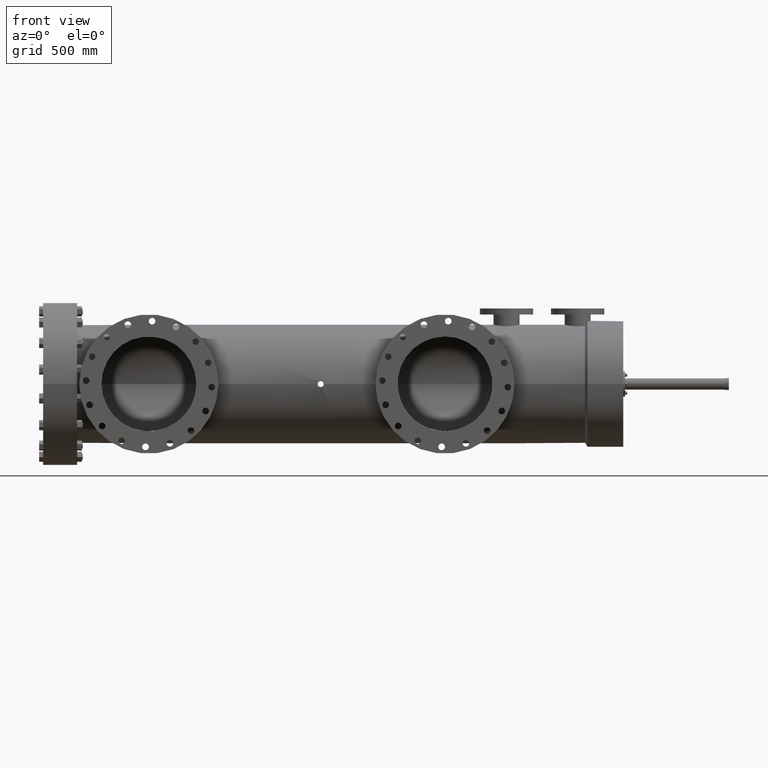
[diagram: clean part render]
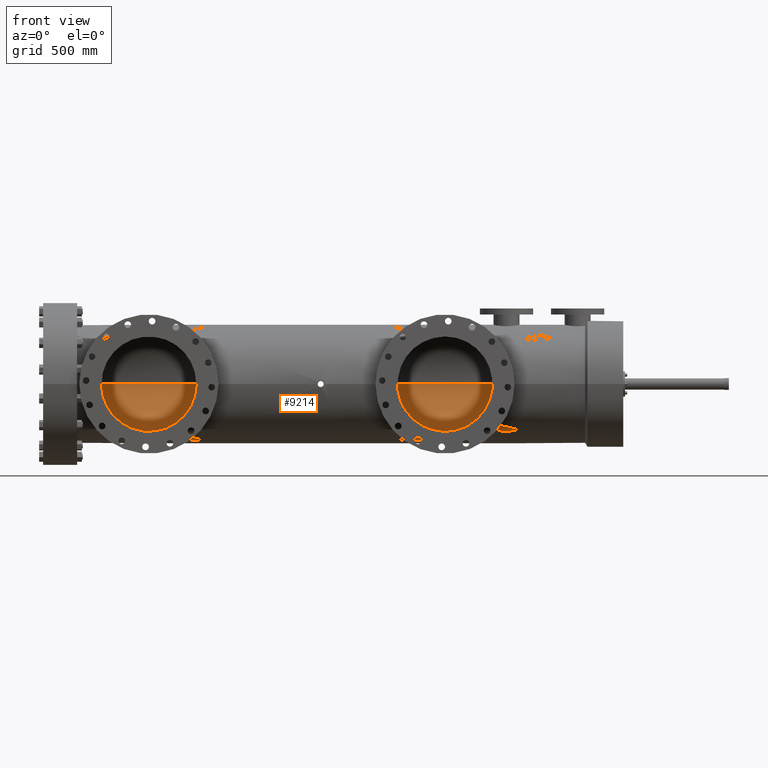
[diagram: same view with one face highlighted and labeled with its STEP entity id]
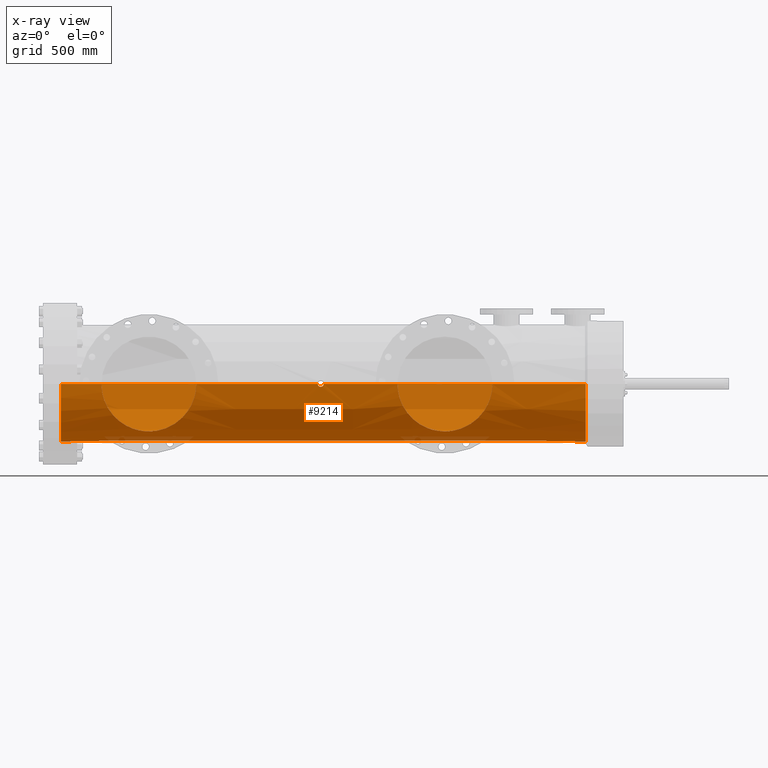
[diagram: x-ray of the same camera — body ghosted, the highlighted face saturated]
A machine part, front view. The second image highlights one B-rep face of the part: STEP entity #9214.
The next image is the same camera in x-ray: the body ghosted, the highlighted face saturated — about 2% of this face is hidden behind the body in this view.
In plain terms, the highlighted conical surface has half-angle 0.002 deg.
Its self-contained STEP definition (entity closure, byte-faithful):
#279 = CARTESIAN_POINT ( 'NONE',  ( 24.39232882805036340, -9.421316541331314909, -2.699939142225124655 ) ) ;
#745 = CARTESIAN_POINT ( 'NONE',  ( 17.96031528633255547, -5.758805532272223360, -7.928868284412169842 ) ) ;
#782 = LINE ( 'NONE', #18711, #11001 ) ;
#797 = CARTESIAN_POINT ( 'NONE',  ( 62.00422786392504548, -7.458280375652960537, -6.362209019289776002 ) ) ;
#931 = CARTESIAN_POINT ( 'NONE',  ( 90.16148958776295785, 9.793663795690340734, -0.4127311979922674845 ) ) ;
#1014 = CARTESIAN_POINT ( 'NONE',  ( 13.42651209204391805, -6.619268866873399659, -7.225770235389515683 ) ) ;
#1034 = VERTEX_POINT ( 'NONE', #19450 ) ;
#1072 = CARTESIAN_POINT ( 'NONE',  ( 59.32614645215986116, -9.424697979949854698, -2.703072667367027559 ) ) ;
#1106 = CARTESIAN_POINT ( 'NONE',  ( 16.29372268271364987, -5.681083243935537652, -7.984663375792330875 ) ) ;
#1114 = CARTESIAN_POINT ( 'NONE',  ( 89.47717472525297921, 9.753733290483582508, -0.9744122372484894656 ) ) ;
#1191 = VECTOR ( 'NONE', #18191, 39.37007874015748143 ) ;
#1205 = CARTESIAN_POINT ( 'NONE',  ( 8.911018579896685665, -9.757837310311769485, -0.9003962378500424135 ) ) ;
#1212 = CARTESIAN_POINT ( 'NONE',  ( 45.59458425846966634, -9.792080280577094342, -0.4067200306687098199 ) ) ;
#1277 = CARTESIAN_POINT ( 'NONE',  ( 71.21178476385379952, -7.141255126980369461, -6.714290257349508018 ) ) ;
#1368 = CARTESIAN_POINT ( 'NONE',  ( 74.80986234949774882, -9.760412961162982626, -0.9013305921862835302 ) ) ;
#1456 = CARTESIAN_POINT ( 'NONE',  ( 74.08751219958556078, -9.181405537244874182, -3.441101267069935687 ) ) ;
#1468 = CARTESIAN_POINT ( 'NONE',  ( 88.64123798535104015, 9.770085816194228556, -0.7934810798631412032 ) ) ;
#1490 = CARTESIAN_POINT ( 'NONE',  ( 45.38586870589011824, -9.800510712146875747, -0.03265973047825470460 ) ) ;
#1514 = CARTESIAN_POINT ( 'NONE',  ( 46.33464961407631932, -9.798066265572089151, -0.2210529081878922497 ) ) ;
#1518 = CARTESIAN_POINT ( 'NONE',  ( 90.62478940921818094, 6.909226111716762063E-15, 0.0000000000000000000 ) ) ;
#1560 = CARTESIAN_POINT ( 'NONE',  ( 88.99130990227989457, 9.754503045997573452, -0.9665043493307531319 ) ) ;
#1577 = CARTESIAN_POINT ( 'NONE',  ( 11.61820156432649398, -7.713655643213581214, -6.044320802968801587 ) ) ;
#1643 = CARTESIAN_POINT ( 'NONE',  ( 74.56144823080687445, -9.559042686692970747, -2.183673926086886929 ) ) ;
#1649 = CARTESIAN_POINT ( 'NONE',  ( 46.19081251668125532, 9.792492163120387616, -0.3975798879856175527 ) ) ;
#1672 = CARTESIAN_POINT ( 'NONE',  ( 45.38586870589011824, 9.800510712146882852, 2.136757097606520133E-25 ) ) ;
#1855 = CARTESIAN_POINT ( 'NONE',  ( 45.82077671231898819, 9.787928789838094445, -0.4968339186462052970 ) ) ;
#1883 = EDGE_CURVE ( 'NONE', #9734, #21793, #6705, .T. ) ;
#1924 = CARTESIAN_POINT ( 'NONE',  ( 46.21609898264216554, 9.793322853503520165, -0.3768781932275288016 ) ) ;
#1953 = CARTESIAN_POINT ( 'NONE',  ( 45.85322482763306340, 9.787766774577660200, -0.5000000000000018874 ) ) ;
#1990 = VECTOR ( 'NONE', #6569, 39.37007874015748143 ) ;
#2043 = CARTESIAN_POINT ( 'NONE',  ( 45.62174090096357304, 9.791311063596229047, -0.4248617849489732534 ) ) ;
#2441 = CARTESIAN_POINT ( 'NONE',  ( 24.29609618872611776, -9.344590134596595377, -2.952339985708383630 ) ) ;
#2775 = CARTESIAN_POINT ( 'NONE',  ( 65.75658788821888834, -5.767749409279006478, -7.924672525341859952 ) ) ;
#2874 = CARTESIAN_POINT ( 'NONE',  ( 64.95425761335594927, -5.969505304088938757, -7.774245386953356096 ) ) ;
#2910 = CARTESIAN_POINT ( 'NONE',  ( 13.65783570847724704, -6.502258961163677853, -7.331240993565498520 ) ) ;
#2972 = CARTESIAN_POINT ( 'NONE',  ( 60.43172228706932003, -8.566333140201180640, -4.768134066438138419 ) ) ;
#3005 = CARTESIAN_POINT ( 'NONE',  ( 19.14013618332662148, -6.101032381243605585, -7.668612179979144017 ) ) ;
#3072 = CARTESIAN_POINT ( 'NONE',  ( 65.48395722662630192, -5.826058895997581644, -7.881890053033109744 ) ) ;
#3108 = CARTESIAN_POINT ( 'NONE',  ( 18.94846737558325600, -6.032008424312683914, -7.723005520867955553 ) ) ;
#3115 = CARTESIAN_POINT ( 'NONE',  ( 90.21167408006206756, 9.798470285333340968, -0.2748739252585934989 ) ) ;
#3195 = CARTESIAN_POINT ( 'NONE',  ( 66.86049224117985545, -5.662767000513762916, -7.999999999999997335 ) ) ;
#3201 = CARTESIAN_POINT ( 'NONE',  ( 21.25761619273588110, -7.166871633091233207, -6.683499774763438595 ) ) ;
#3247 = CARTESIAN_POINT ( 'NONE',  ( 4.760007912436881483, 9.798877748375659280, 0.0000000000000000000 ) ) ;
#3288 = CARTESIAN_POINT ( 'NONE',  ( 15.47330794972398849, -5.825208343646455234, -7.880020305949234860 ) ) ;
#3294 = CARTESIAN_POINT ( 'NONE',  ( 2.010000000000142339, 1.897867698812970558E-16, 0.0000000000000000000 ) ) ;
#3390 = CARTESIAN_POINT ( 'NONE',  ( 45.66414067474029537, -9.790223629947410799, -0.4493420235991862355 ) ) ;
#3445 = AXIS2_PLACEMENT_3D ( 'NONE', #17784, #22191, #26543 ) ;
#3449 = CARTESIAN_POINT ( 'NONE',  ( 74.86049224117984124, -9.801695449933674809, -0.2765965265660830230 ) ) ;
#3461 = CARTESIAN_POINT ( 'NONE',  ( 88.28843366247254210, 9.798393083656971925, -0.2748697836163772057 ) ) ;
#3467 = CARTESIAN_POINT ( 'NONE',  ( 90.62478940921818094, -9.802329098689698483, 1.200439095489930548E-15 ) ) ;
#3481 = CARTESIAN_POINT ( 'NONE',  ( 89.31615008927659005, 9.751134525649161944, -1.000000000000006883 ) ) ;
#3508 = CARTESIAN_POINT ( 'NONE',  ( 46.21649945858020203, -9.793336994836321807, -0.3764961099062537064 ) ) ;
#3540 = CARTESIAN_POINT ( 'NONE',  ( 69.21210655566294179, -6.131523709541304434, -7.646841670670427860 ) ) ;
#3569 = CARTESIAN_POINT ( 'NONE',  ( 8.874860107336386861, -9.787302285417240455, -0.5542539562675082854 ) ) ;
#3579 = CARTESIAN_POINT ( 'NONE',  ( 45.39862888176386235, -9.799867995198365378, -0.1134333349451302209 ) ) ;
#3659 = CARTESIAN_POINT ( 'NONE',  ( 88.89719760280554794, 9.757452920757907933, -0.9362510111404485080 ) ) ;
#3746 = CARTESIAN_POINT ( 'NONE',  ( 73.39736110929270296, -8.648824532111079932, -4.612316344326865547 ) ) ;
#3792 = ORIENTED_EDGE ( 'NONE', *, *, #13354, .T. ) ;
#3838 = CARTESIAN_POINT ( 'NONE',  ( 70.89302295319399150, -6.951546184137329831, -6.910444069353355090 ) ) ;
#3839 = VECTOR ( 'NONE', #22656, 39.37007874015748143 ) ;
#3845 = CARTESIAN_POINT ( 'NONE',  ( 46.37940889615897788, 9.800222687526815690, -0.08176301120257939425 ) ) ;
#3849 = CARTESIAN_POINT ( 'NONE',  ( 89.11895157724963212, 9.751798232096179575, -0.9935108352566323076 ) ) ;
#3875 = CARTESIAN_POINT ( 'NONE',  ( 45.88586870589012534, 9.787768088415152334, -0.5000000000000018874 ) ) ;
#4063 = CARTESIAN_POINT ( 'NONE',  ( 45.38586870589011824, 9.800510712146882852, 2.136757097606520133E-25 ) ) ;
#4132 = CARTESIAN_POINT ( 'NONE',  ( 46.31899747106437104, 9.797361179515666763, -0.2503376971763494052 ) ) ;
#4320 = VERTEX_POINT ( 'NONE', #3467 ) ;
#4378 = EDGE_CURVE ( 'NONE', #20745, #16802, #28085, .T. ) ;
#4475 = CARTESIAN_POINT ( 'NONE',  ( 4.760007912436882371, -9.798877748375659280, 1.200016426978447546E-15 ) ) ;
#4522 = EDGE_CURVE ( 'NONE', #27262, #21743, #8027, .T. ) ;
#4645 = CARTESIAN_POINT ( 'NONE',  ( 23.71487717820624752, -8.888708064794872854, -4.133411517548927883 ) ) ;
#4832 = CARTESIAN_POINT ( 'NONE',  ( 24.80976274328171272, -9.758313552580895944, -0.9022141227195618063 ) ) ;
#4924 = CARTESIAN_POINT ( 'NONE',  ( 24.77342325420806901, -9.728731090712619434, -1.179122369567905393 ) ) ;
#4948 = VECTOR ( 'NONE', #25262, 39.37007874015748143 ) ;
#4984 = CARTESIAN_POINT ( 'NONE',  ( 61.48354654243040329, -7.808527382762680880, -5.923876869915077670 ) ) ;
#5028 = CARTESIAN_POINT ( 'NONE',  ( 24.86049224117985545, -9.799685690953408468, 1.200140814752101510E-15 ) ) ;
#5084 = CARTESIAN_POINT ( 'NONE',  ( 59.58277854904691395, -9.220955053683873359, -3.322546469725014884 ) ) ;
#5128 = CARTESIAN_POINT ( 'NONE',  ( 12.81675735257982396, -6.952932841763599825, -6.907262569712975697 ) ) ;
#5184 = CARTESIAN_POINT ( 'NONE',  ( 63.26323500263490018, -6.707829939862482327, -7.146725287576750851 ) ) ;
#5223 = CARTESIAN_POINT ( 'NONE',  ( 20.88671935428436299, -6.945053781329269427, -6.914120472601025469 ) ) ;
#5314 = CARTESIAN_POINT ( 'NONE',  ( 21.10000246273018476, -7.071248979005416935, -6.784574465424803691 ) ) ;
#5325 = CARTESIAN_POINT ( 'NONE',  ( 89.91015919429582937, 9.773442840322770664, -0.7518961167791015088 ) ) ;
#5377 = CARTESIAN_POINT ( 'NONE',  ( 63.66549028453822956, -6.501521910325042342, -7.334580682442592980 ) ) ;
#5416 = CARTESIAN_POINT ( 'NONE',  ( 23.24352791302816712, -8.530828957047708272, -4.822957073630965930 ) ) ;
#5514 = CARTESIAN_POINT ( 'NONE',  ( 14.68978662525803536, -6.056876519260968372, -7.704269481456393898 ) ) ;
#5519 = CARTESIAN_POINT ( 'NONE',  ( 45.48845773236820378, -9.795799699318690656, -0.3052064428722124356 ) ) ;
#5612 = CARTESIAN_POINT ( 'NONE',  ( 45.72508717758885410, -9.789069430897358259, -0.4737298652523404541 ) ) ;
#5631 = CARTESIAN_POINT ( 'NONE',  ( 45.88586870589012534, -9.787768088415145229, -0.5000000000000018874 ) ) ;
#5657 = EDGE_CURVE ( 'NONE', #25934, #27262, #14959, .T. ) ;
#5659 = CARTESIAN_POINT ( 'NONE',  ( 58.86049224117987677, -9.801052327059995406, -0.2774397619406080984 ) ) ;
#5668 = CARTESIAN_POINT ( 'NONE',  ( 74.80165867348580377, -9.753731793377625081, -0.9709468608162067360 ) ) ;
#5695 = CARTESIAN_POINT ( 'NONE',  ( 10.42921937449577818, -8.565914672601071089, -4.764746784469938490 ) ) ;
#5704 = CARTESIAN_POINT ( 'NONE',  ( 89.69381441004098576, 9.761054318362246462, -0.8985420849505451057 ) ) ;
#5884 = CARTESIAN_POINT ( 'NONE',  ( 9.553994211350696375, -9.241559813644199650, -3.258767869497628755 ) ) ;
#5890 = CARTESIAN_POINT ( 'NONE',  ( 45.42318593740324673, -9.798673371922470565, -0.1916234433861865871 ) ) ;
#5949 = CARTESIAN_POINT ( 'NONE',  ( 68.23954406339611012, -5.822881908861550215, -7.884825904572606348 ) ) ;
#6017 = CARTESIAN_POINT ( 'NONE',  ( 24.86049224117985545, -9.799685690953408468, 1.200140814752101510E-15 ) ) ;
#6046 = CARTESIAN_POINT ( 'NONE',  ( 68.95784692037791785, -6.038525970598914938, -7.720462985834719127 ) ) ;
#6059 = CARTESIAN_POINT ( 'NONE',  ( 88.27603790705987308, 9.799617210756888852, -0.2270751238764095181 ) ) ;
#6085 = CARTESIAN_POINT ( 'NONE',  ( 45.41772306735251163, 9.798936492964731571, -0.1763743142706030442 ) ) ;
#6181 = CARTESIAN_POINT ( 'NONE',  ( 45.75632630621760910, 9.788607549349485737, -0.4832049414673220689 ) ) ;
#6349 = CARTESIAN_POINT ( 'NONE',  ( 58.86049224117985545, -9.801052327059991853, 1.199605744919106021E-15 ) ) ;
#6440 = ORIENTED_EDGE ( 'NONE', *, *, #27313, .F. ) ;
#6456 = CARTESIAN_POINT ( 'NONE',  ( 45.58067721873132427, 9.792474493902229682, -0.3974195399665272910 ) ) ;
#6469 = ORIENTED_EDGE ( 'NONE', *, *, #5657, .F. ) ;
#6569 = DIRECTION ( 'NONE',  ( 0.9999999991921737497, -4.019517957289223841E-05, 4.922489800518841481E-21 ) ) ;
#6705 = B_SPLINE_CURVE_WITH_KNOTS ( 'NONE', 3,
 ( #7771, #9949, #23649, #14981, #3845, #19254, #12713, #21361, #12625, #4132, #14709, #8522, #10408, #1924, #1649, #23364, #17152, #16965, #10231, #19346, #21459, #25647, #12439, #27626, #27818, #16872 ),
 .UNSPECIFIED., .F., .F.,
 ( 4, 2, 2, 2, 2, 2, 2, 2, 2, 2, 2, 2, 4 ),
 ( 0.01134461212176070440, 0.01258534483995168811, 0.01382607755814267182, 0.01630754299452450914, 0.01754827571271529857, 0.01878900843090609146, 0.02127047386728767031, 0.02375193930366925263, 0.02499267202186031961, 0.02623340474005139006, 0.02871487017643290646, 0.02995560289462399078, 0.03119633561281507511 ),
 .UNSPECIFIED. ) ;
#7028 = CARTESIAN_POINT ( 'NONE',  ( 24.80154336224820000, -9.751618239325358317, -0.9718938821171205777 ) ) ;
#7146 = VERTEX_POINT ( 'NONE', #18679 ) ;
#7185 = CARTESIAN_POINT ( 'NONE',  ( 60.00709521752729358, -8.889555979156067878, -4.135000633789836400 ) ) ;
#7221 = CARTESIAN_POINT ( 'NONE',  ( 24.71593840836806422, -9.682018595915607762, -1.520124255912896016 ) ) ;
#7275 = CARTESIAN_POINT ( 'NONE',  ( 59.55519499266011252, -9.242741666775074805, -3.261460157678774952 ) ) ;
#7310 = CARTESIAN_POINT ( 'NONE',  ( 18.62436739785780659, -5.926564081008024232, -7.804284203383559770 ) ) ;
#7343 = LINE ( 'NONE', #20419, #1191 ) ;
#7359 = CARTESIAN_POINT ( 'NONE',  ( 60.58472940562327125, -8.451931128115383274, -4.967647678878784667 ) ) ;
#7397 = CARTESIAN_POINT ( 'NONE',  ( 17.12724512070441207, -5.663862519892436609, -7.996784432731679715 ) ) ;
#7405 = DIRECTION ( 'NONE',  ( 8.363852109406349511E-17, -1.000000000000000000, 0.0000000000000000000 ) ) ;
#7494 = CARTESIAN_POINT ( 'NONE',  ( 15.88228472054454166, -5.741537577148529969, -7.941166745878928346 ) ) ;
#7504 = CARTESIAN_POINT ( 'NONE',  ( 90.21605569206832342, 9.798901775080029353, -0.2590615066086743301 ) ) ;
#7554 = CARTESIAN_POINT ( 'NONE',  ( 59.09082125688457410, -9.613921098938826404, -1.925620962628654897 ) ) ;
#7591 = CARTESIAN_POINT ( 'NONE',  ( 22.09706312640200565, -7.709278228267019806, -6.053017827501999015 ) ) ;
#7685 = CARTESIAN_POINT ( 'NONE',  ( 11.71230094202589456, -7.649984423141800605, -6.124651258377797447 ) ) ;
#7717 = CARTESIAN_POINT ( 'NONE',  ( 46.10774619494874571, -9.790244575792623749, -0.4492757689922434738 ) ) ;
#7771 = CARTESIAN_POINT ( 'NONE',  ( 46.38586870589013245, 9.800550907326487149, 8.868535795577574159E-24 ) ) ;
#7819 = CARTESIAN_POINT ( 'NONE',  ( 46.26265322447456896, -9.795005652698062448, -0.3303020465483563761 ) ) ;
#7848 = CARTESIAN_POINT ( 'NONE',  ( 58.98011408740912742, -9.703654981949972225, -1.385327404214915292 ) ) ;
#7858 = CARTESIAN_POINT ( 'NONE',  ( 73.13003217264582645, -8.448451828910865657, -4.970823295176928447 ) ) ;
#7868 = CARTESIAN_POINT ( 'NONE',  ( 88.66762846786897967, 9.768477884648415710, -0.8130496251177457001 ) ) ;
#7892 = CARTESIAN_POINT ( 'NONE',  ( 90.04490989351658925, 9.783438488619031759, -0.6103504204671282851 ) ) ;
#7953 = CARTESIAN_POINT ( 'NONE',  ( 74.71621023799571049, -9.684273327948014654, -1.518707797874277343 ) ) ;
#7963 = CARTESIAN_POINT ( 'NONE',  ( 89.02302185348403896, 9.753712898480966231, -0.9744327031194124356 ) ) ;
#7976 = CARTESIAN_POINT ( 'NONE',  ( 8.937290446308800540, -9.736446719255827276, -1.108036808827903341 ) ) ;
#8027 = LINE ( 'NONE', #3247, #4948 ) ;
#8046 = CARTESIAN_POINT ( 'NONE',  ( 74.32176773061858910, -9.367135891609013498, -2.886852565577219032 ) ) ;
#8059 = CARTESIAN_POINT ( 'NONE',  ( 88.25005456058694620, 9.802233645795958239, -0.06530492378730416714 ) ) ;
#8073 = CARTESIAN_POINT ( 'NONE',  ( 10.14084380825289955, -8.784479004807913327, -4.348609840365738499 ) ) ;
#8080 = CARTESIAN_POINT ( 'NONE',  ( 45.88586870589012534, -9.787768088415145229, -0.5000000000000018874 ) ) ;
#8105 = CARTESIAN_POINT ( 'NONE',  ( 46.13647045428519533, -9.790948196750838051, -0.4338944951510296799 ) ) ;
#8145 = CARTESIAN_POINT ( 'NONE',  ( 67.62761373522256747, -5.714139606063653787, -7.963434930968907643 ) ) ;
#8154 = CARTESIAN_POINT ( 'NONE',  ( 88.38378308220332258, 9.789496672478671613, -0.4998445566611216528 ) ) ;
#8244 = CARTESIAN_POINT ( 'NONE',  ( 72.63792960351102579, -8.089161154893528050, -5.539159271285942765 ) ) ;
#8276 = CARTESIAN_POINT ( 'NONE',  ( 45.41213522895763077, 9.799205663840947267, -0.1607692383304899220 ) ) ;
#8522 = CARTESIAN_POINT ( 'NONE',  ( 46.28343819416505056, 9.795838492428218913, -0.3049581805239132137 ) ) ;
#8529 = CARTESIAN_POINT ( 'NONE',  ( 8.860492241179862560, -9.799042568079721960, 1.199404220778006528E-15 ) ) ;
#8638 = CARTESIAN_POINT ( 'NONE',  ( 45.52088681830090167, 9.794549276253709635, -0.3421317093489463224 ) ) ;
#8831 = EDGE_CURVE ( 'NONE', #1034, #20745, #24525, .T. ) ;
#8945 = CARTESIAN_POINT ( 'NONE',  ( 24.63085001171613797, -9.613064755211292223, -1.922703584511356478 ) ) ;
#9031 = CARTESIAN_POINT ( 'NONE',  ( 24.24544189081080248, -9.304332331825136748, -3.076854908570416658 ) ) ;
#9156 = B_SPLINE_CURVE_WITH_KNOTS ( 'NONE', 3,
 ( #5028, #24363, #24182, #4832, #7028, #15869, #4924, #11506, #7221, #8945, #11126, #15590, #279, #15495, #2441, #9031, #26414, #17664, #17755, #4645, #18413, #26998, #9410, #11602, #5416, #16344, #16153, #20447, #13979, #11795, #7591, #27177, #16067, #3201, #24927, #5314, #15973, #5223, #24655, #11894, #22628, #26810, #22443, #14152, #3005, #22723, #3108, #13789, #7310, #9505, #745, #26903, #11985, #20630, #13885, #22814, #9775, #7397, #25018, #18310, #1106, #7494, #9691, #3288, #18505, #18220, #5514, #27086, #14069, #2910, #9599, #18130, #1014, #16250, #20736, #5128, #24733, #20351, #11694, #7685, #1577, #12453, #16799, #25395, #9964, #27549, #16619, #10053, #5695, #8073, #16432, #25206, #18888, #14249, #22903, #25489, #5884, #27367, #22997, #12184, #27642, #10154, #23290, #14632, #7976, #9871, #1205, #3569, #25114, #14353 ),
 .UNSPECIFIED., .F., .F.,
 ( 4, 2, 2, 2, 2, 2, 2, 2, 2, 2, 2, 2, 2, 2, 2, 2, 2, 2, 2, 2, 2, 2, 2, 2, 2, 2, 2, 2, 2, 2, 2, 2, 2, 2, 2, 2, 2, 2, 2, 2, 2, 2, 2, 2, 2, 2, 2, 2, 2, 2, 2, 2, 2, 2, 4 ),
 ( 0.1623912216184582591, 0.1835157162265343977, 0.1887968398785534463, 0.1940779635305724948, 0.2046402108346106474, 0.2257647054426868971, 0.2363269527467250497, 0.2416080763987440982, 0.2468892000507631745, 0.2680136946588398406, 0.2891381892669164788, 0.2944193129189355274, 0.2997004365709545204, 0.3102626838749924509, 0.3313871784830682010, 0.3525116730911438401, 0.3736361676992194791, 0.3789172913512384167, 0.3841984150032572431, 0.3947606623072946186, 0.4158851569153694250, 0.4370096515234442314, 0.4422907751754628913, 0.4475718988274814958, 0.4581341461315187602, 0.4792586407395935666, 0.4845397643916122266, 0.4871803262176215288, 0.4898208880436308865, 0.5003831353476679844, 0.5215076299557426243, 0.5320698772597798332, 0.5426321245638172641, 0.5637566191718920150, 0.5848811137799668769, 0.5901622374319857034, 0.5954433610840046409, 0.6060056083880422939, 0.6271301029961178219, 0.6482545976041932390, 0.6588168449082310030, 0.6640979685602497185, 0.6693790922122686560, 0.6905035868203437399, 0.7116280814284190459, 0.7327525760364941299, 0.7433148233405317828, 0.7485959469925504983, 0.7538770706445694358, 0.7750015652526447418, 0.7961260598607198258, 0.8066883071647574788, 0.8119694308167761942, 0.8172505544687951318, 0.8383750490768702157 ),
 .UNSPECIFIED. ) ;
#9214 = ADVANCED_FACE ( 'NONE', ( #24207 ), #20450, .F. ) ;
#9372 = CARTESIAN_POINT ( 'NONE',  ( 62.20212902175602210, -7.330601821520226657, -6.508483677146995383 ) ) ;
#9383 = EDGE_CURVE ( 'NONE', #21743, #4320, #14277, .T. ) ;
#9406 = EDGE_CURVE ( 'NONE', #9734, #17162, #25853, .T. ) ;
#9410 = CARTESIAN_POINT ( 'NONE',  ( 23.35759409186880120, -8.616517071924628013, -4.668166694064631805 ) ) ;
#9471 = CARTESIAN_POINT ( 'NONE',  ( 61.71679990692103246, -7.649531538628651539, -6.128432181008331980 ) ) ;
#9505 = CARTESIAN_POINT ( 'NONE',  ( 18.22916589061275516, -5.817026777321500752, -7.886644560487021671 ) ) ;
#9599 = CARTESIAN_POINT ( 'NONE',  ( 13.59940959801874349, -6.531243430132170680, -7.305434822905112924 ) ) ;
#9656 = CARTESIAN_POINT ( 'NONE',  ( 65.34987271888483917, -5.859323333457364669, -7.857237689358853139 ) ) ;
#9691 = CARTESIAN_POINT ( 'NONE',  ( 15.74559923044966681, -5.766452368380544868, -7.923131568720739537 ) ) ;
#9697 = DIRECTION ( 'NONE',  ( -1.000000000000000000, -7.582751577510925543E-17, -0.0000000000000000000 ) ) ;
#9698 = CARTESIAN_POINT ( 'NONE',  ( 90.22768776239111332, 9.800056088154414979, -0.2109606409418335604 ) ) ;
#9734 = VERTEX_POINT ( 'NONE', #11405 ) ;
#9775 = CARTESIAN_POINT ( 'NONE',  ( 17.30254543301789028, -5.676449042721632310, -7.987854616430519528 ) ) ;
#9782 = CARTESIAN_POINT ( 'NONE',  ( 90.25005456058694620, 9.802314036155166832, -2.266875666445652100E-23 ) ) ;
#9871 = CARTESIAN_POINT ( 'NONE',  ( 8.919162533313343744, -9.751203581274554111, -0.9696157604547505082 ) ) ;
#9878 = CARTESIAN_POINT ( 'NONE',  ( 45.50917690601983878, -9.794971850780093803, -0.3304031791645240523 ) ) ;
#9880 = CARTESIAN_POINT ( 'NONE',  ( 90.18641524148630140, 9.796015909576889058, -0.3525471965923892559 ) ) ;
#9900 = CARTESIAN_POINT ( 'NONE',  ( 46.38271158611238576, -9.800388116766422186, -0.06507796215728990641 ) ) ;
#9949 = CARTESIAN_POINT ( 'NONE',  ( 46.38586870589014666, 9.800550907326487149, -0.01630581574055491381 ) ) ;
#9964 = CARTESIAN_POINT ( 'NONE',  ( 11.29730895865627183, -7.935436878869768229, -5.749339618757614900 ) ) ;
#9995 = CARTESIAN_POINT ( 'NONE',  ( 46.38586870589013245, -9.800550907326480043, 1.200221210260260384E-15 ) ) ;
#10025 = CARTESIAN_POINT ( 'NONE',  ( 58.91111173126559919, -9.759779682035899739, -0.9012234809596486595 ) ) ;
#10029 = CARTESIAN_POINT ( 'NONE',  ( 70.23009668870994915, -6.586523304743793439, -7.260158405530328096 ) ) ;
#10042 = CARTESIAN_POINT ( 'NONE',  ( 88.25638991523993582, 9.801581311650908290, -0.1302350026169892538 ) ) ;
#10053 = CARTESIAN_POINT ( 'NONE',  ( 10.58198831383438687, -8.451639558363092775, -4.964171240345831571 ) ) ;
#10057 = DIRECTION ( 'NONE',  ( 0.9999999991921737497, 4.019517957304389119E-05, 0.0000000000000000000 ) ) ;
#10076 = ORIENTED_EDGE ( 'NONE', *, *, #16966, .T. ) ;
#10126 = CARTESIAN_POINT ( 'NONE',  ( 69.76415634653142206, -6.360735272902717341, -7.458744463346368647 ) ) ;
#10136 = CARTESIAN_POINT ( 'NONE',  ( 88.27241245852394513, 9.799978366228165427, -0.2109184243524681035 ) ) ;
#10154 = CARTESIAN_POINT ( 'NONE',  ( 9.005062010368012793, -9.681366395012886983, -1.520242563963635662 ) ) ;
#10184 = CARTESIAN_POINT ( 'NONE',  ( 46.06224689269132710, -9.789352504016221701, -0.4681456177402008589 ) ) ;
#10223 = CARTESIAN_POINT ( 'NONE',  ( 71.52142716361890962, -7.332707208073894201, -6.506723196821455169 ) ) ;
#10231 = CARTESIAN_POINT ( 'NONE',  ( 46.09229882480391183, 9.789941313365956077, -0.4556920948181542030 ) ) ;
#10277 = CARTESIAN_POINT ( 'NONE',  ( 46.28332859286545187, -9.795833791478131047, -0.3051274071038617142 ) ) ;
#10310 = CARTESIAN_POINT ( 'NONE',  ( 74.39319204883743453, -9.424097124073044895, -2.697523357902954722 ) ) ;
#10321 = CARTESIAN_POINT ( 'NONE',  ( 88.74895557553084302, 9.763827817670916787, -0.8678544355461048632 ) ) ;
#10402 = CARTESIAN_POINT ( 'NONE',  ( 71.10638405411016549, -7.077461113401121828, -6.781441136800447467 ) ) ;
#10408 = CARTESIAN_POINT ( 'NONE',  ( 46.26277080220506832, 9.795009568079692031, -0.3302029951523254847 ) ) ;
#10410 = ORIENTED_EDGE ( 'NONE', *, *, #8831, .T. ) ;
#10485 = VERTEX_POINT ( 'NONE', #22327 ) ;
#10530 = CARTESIAN_POINT ( 'NONE',  ( 45.63592517920017855, 9.790938204864811922, -0.4333541031902774510 ) ) ;
#10624 = CARTESIAN_POINT ( 'NONE',  ( 45.50988791577764658, 9.794966078588359437, -0.3300144769413576595 ) ) ;
#10702 = EDGE_CURVE ( 'NONE', #17162, #25934, #27698, .T. ) ;
#10722 = CARTESIAN_POINT ( 'NONE',  ( 45.77240448235519210, 9.788407885220339111, -0.4872331039284155119 ) ) ;
#10779 = EDGE_LOOP ( 'NONE', ( #10410, #16874, #24519, #25338, #17520, #27131, #10076, #27464, #12270, #3792, #25704, #17862, #6469, #21784, #11326, #26735, #16029, #6440 ) ) ;
#11001 = VECTOR ( 'NONE', #10057, 39.37007874015748143 ) ;
#11126 = CARTESIAN_POINT ( 'NONE',  ( 24.56089459045804801, -9.556535384212105910, -2.185656796394338741 ) ) ;
#11326 = ORIENTED_EDGE ( 'NONE', *, *, #9406, .F. ) ;
#11405 = CARTESIAN_POINT ( 'NONE',  ( 46.38586870589013245, 9.800550907326487149, 8.868535795577574159E-24 ) ) ;
#11422 = VERTEX_POINT ( 'NONE', #26724 ) ;
#11466 = CARTESIAN_POINT ( 'NONE',  ( 62.82292587107000514, -6.952169699435583716, -6.910880710940260130 ) ) ;
#11506 = CARTESIAN_POINT ( 'NONE',  ( 24.74098664259954461, -9.702359454560941288, -1.384570368969714416 ) ) ;
#11561 = CARTESIAN_POINT ( 'NONE',  ( 59.81699707125456911, -9.037179356332950775, -3.795523157952284787 ) ) ;
#11602 = CARTESIAN_POINT ( 'NONE',  ( 23.28192077153063622, -8.559598048264977166, -4.771725932133684900 ) ) ;
#11694 = CARTESIAN_POINT ( 'NONE',  ( 11.99931731826874959, -7.458844045836062087, -6.358449899668460858 ) ) ;
#11757 = CARTESIAN_POINT ( 'NONE',  ( 64.69899064077048934, -6.056818264869248125, -7.706867358203927765 ) ) ;
#11795 = CARTESIAN_POINT ( 'NONE',  ( 22.28085507641355889, -7.835582689737965012, -5.889043484114075966 ) ) ;
#11803 = CARTESIAN_POINT ( 'NONE',  ( 90.09057834845535240, 9.787319970791122259, -0.5420239171665104383 ) ) ;
#11894 = CARTESIAN_POINT ( 'NONE',  ( 20.44881552574004147, -6.698745758891520907, -7.154464705954432624 ) ) ;
#11901 = CARTESIAN_POINT ( 'NONE',  ( 90.25005456058694620, 9.802314036155163279, -0.06527669612163621016 ) ) ;
#11985 = CARTESIAN_POINT ( 'NONE',  ( 17.54707637242626816, -5.700411014074897587, -7.970789075961528525 ) ) ;
#12043 = CARTESIAN_POINT ( 'NONE',  ( 59.42117445114535457, -9.348808610125598051, -2.954385690558241517 ) ) ;
#12093 = CARTESIAN_POINT ( 'NONE',  ( 45.54374905528560191, -9.793724921191239829, -0.3649929970466923024 ) ) ;
#12094 = CARTESIAN_POINT ( 'NONE',  ( 90.14756013048902616, 9.792372550561411870, -0.4422158792683658080 ) ) ;
#12114 = CARTESIAN_POINT ( 'NONE',  ( 46.38586870589012534, -9.800550907326478267, -0.03259973255181356638 ) ) ;
#12184 = CARTESIAN_POINT ( 'NONE',  ( 9.160458522582860752, -9.555604281289259205, -2.186852188848912526 ) ) ;
#12191 = CARTESIAN_POINT ( 'NONE',  ( 45.38903794262457581, -9.800347582748035080, -0.06510194650283783468 ) ) ;
#12193 = CARTESIAN_POINT ( 'NONE',  ( 89.50887472657856847, 9.754526021072198461, -0.9664834214544844038 ) ) ;
#12248 = LINE ( 'NONE', #4475, #1990 ) ;
#12253 = CARTESIAN_POINT ( 'NONE',  ( 73.58020433240382374, -8.787356917553060143, -4.348716587203879769 ) ) ;
#12270 = ORIENTED_EDGE ( 'NONE', *, *, #20658, .F. ) ;
#12309 = CARTESIAN_POINT ( 'NONE',  ( 46.35956880576992489, -9.799242148352059090, -0.1608577102209149401 ) ) ;
#12341 = CARTESIAN_POINT ( 'NONE',  ( 73.24630356972299694, -8.535214256247966702, -4.819280804464502133 ) ) ;
#12353 = CARTESIAN_POINT ( 'NONE',  ( 89.18395547780880861, 9.751129184194727628, -1.000000000000009770 ) ) ;
#12428 = CARTESIAN_POINT ( 'NONE',  ( 73.36019039717486123, -8.620760286716215859, -4.664550255295139891 ) ) ;
#12439 = CARTESIAN_POINT ( 'NONE',  ( 45.95137224351149996, 9.787976147992385023, -0.4959650352031122478 ) ) ;
#12453 = CARTESIAN_POINT ( 'NONE',  ( 11.47937377190260477, -7.808879581079559706, -5.920086181556770910 ) ) ;
#12484 = CARTESIAN_POINT ( 'NONE',  ( 46.34161782563879939, -9.798389243097421542, -0.2062959442245967945 ) ) ;
#12523 = CARTESIAN_POINT ( 'NONE',  ( 74.63127657234859669, -9.615458427085791016, -1.920943872616887260 ) ) ;
#12617 = CARTESIAN_POINT ( 'NONE',  ( 74.24656551303307594, -9.307340794846497900, -3.074155506304494967 ) ) ;
#12625 = CARTESIAN_POINT ( 'NONE',  ( 46.33448530609009453, 9.798058716451377492, -0.2213879759018791971 ) ) ;
#12632 = DIRECTION ( 'NONE',  ( 0.9999999991921737497, -4.019517957289223841E-05, 4.922489800518841481E-21 ) ) ;
#12713 = CARTESIAN_POINT ( 'NONE',  ( 46.36036739641969717, 9.799273969977951637, -0.1610090621362187113 ) ) ;
#12740 = CARTESIAN_POINT ( 'NONE',  ( 45.40259951741802524, 9.799670904206088551, -0.1293098860623471680 ) ) ;
#12894 = CARTESIAN_POINT ( 'NONE',  ( 67.34947684298271042, -5.683767177743697552, -7.985118766652483657 ) ) ;
#12931 = CARTESIAN_POINT ( 'NONE',  ( 45.69426464884419659, 9.789600919344087160, -0.4626906063601299857 ) ) ;
#13021 = CARTESIAN_POINT ( 'NONE',  ( 45.47915048880378208, 9.796194213952215790, -0.2912863540773005799 ) ) ;
#13354 = EDGE_CURVE ( 'NONE', #10485, #4320, #18455, .T. ) ;
#13508 = CARTESIAN_POINT ( 'NONE',  ( 90.25005456058694620, 9.802314036155166832, -2.266875666445652100E-23 ) ) ;
#13752 = CARTESIAN_POINT ( 'NONE',  ( 59.63907840355931000, -9.176587475251238857, -3.443198195568173414 ) ) ;
#13789 = CARTESIAN_POINT ( 'NONE',  ( 18.75475281609608658, -5.966780185966565675, -7.773647446552568674 ) ) ;
#13848 = CARTESIAN_POINT ( 'NONE',  ( 63.49109223182527728, -6.588978014965578112, -7.256114151611448015 ) ) ;
#13851 = AXIS2_PLACEMENT_3D ( 'NONE', #1518, #20949, #16745 ) ;
#13885 = CARTESIAN_POINT ( 'NONE',  ( 17.40772772810737479, -5.685615058617999651, -7.981338539129065879 ) ) ;
#13979 = CARTESIAN_POINT ( 'NONE',  ( 22.63427384804405307, -8.084111286131287599, -5.542978655885840489 ) ) ;
#14069 = CARTESIAN_POINT ( 'NONE',  ( 13.95235694409080551, -6.359250804600659279, -7.457104199955420398 ) ) ;
#14077 = CARTESIAN_POINT ( 'NONE',  ( 89.87195965666639097, 9.770960393937166089, -0.7832659356427442710 ) ) ;
#14152 = CARTESIAN_POINT ( 'NONE',  ( 19.20317877024795905, -6.124888433020927891, -7.649582298784990186 ) ) ;
#14213 = CARTESIAN_POINT ( 'NONE',  ( 58.86049224117985545, -9.801052327059991853, 1.199605744919106021E-15 ) ) ;
#14249 = CARTESIAN_POINT ( 'NONE',  ( 9.666473724923084987, -9.152892570929367366, -3.500062724159844318 ) ) ;
#14255 = CARTESIAN_POINT ( 'NONE',  ( 45.58128615925372173, -9.792485550216976975, -0.3968627877506972768 ) ) ;
#14257 = CARTESIAN_POINT ( 'NONE',  ( 89.83255538248430128, 9.768529334372141548, -0.8129959697066571067 ) ) ;
#14277 = CIRCLE ( 'NONE', #13851, 9.802329098689705589 ) ;
#14353 = CARTESIAN_POINT ( 'NONE',  ( 8.860492241179862560, -9.799042568079721960, 1.199404220778006528E-15 ) ) ;
#14359 = CARTESIAN_POINT ( 'NONE',  ( 89.85893478413532875, 9.770138896804120066, -0.7934321191141954221 ) ) ;
#14379 = CARTESIAN_POINT ( 'NONE',  ( 89.25005456058693198, 9.751131854993746018, -1.000000000000007994 ) ) ;
#14380 = DIRECTION ( 'NONE',  ( 0.9999999991921737497, 4.019517957304389119E-05, 0.0000000000000000000 ) ) ;
#14415 = CARTESIAN_POINT ( 'NONE',  ( 74.84618820552155682, -9.790009117999652233, -0.5538693455654141173 ) ) ;
#14507 = CARTESIAN_POINT ( 'NONE',  ( 74.43764427255970872, -9.459679031582284736, -2.570030318063759811 ) ) ;
#14519 = CARTESIAN_POINT ( 'NONE',  ( 88.37570287903038491, 9.790215287888754503, -0.4855685644032524673 ) ) ;
#14570 = CARTESIAN_POINT ( 'NONE',  ( 46.31068418139494725, -9.796995664086626476, -0.2641989512691470532 ) ) ;
#14605 = CARTESIAN_POINT ( 'NONE',  ( 68.76439173402160066, -5.973150740192090247, -7.771289994920294930 ) ) ;
#14616 = CARTESIAN_POINT ( 'NONE',  ( 88.80638423670900750, 9.761014622924905737, -0.8985836620900092830 ) ) ;
#14632 = CARTESIAN_POINT ( 'NONE',  ( 8.947296990748281331, -9.728305230975738738, -1.177372839254640313 ) ) ;
#14709 = CARTESIAN_POINT ( 'NONE',  ( 46.31059211246476082, 9.796991730764872841, -0.2643393186352645530 ) ) ;
#14711 = CARTESIAN_POINT ( 'NONE',  ( 88.59001578688726397, 9.773385189927553895, -0.7519534458994007187 ) ) ;
#14821 = CARTESIAN_POINT ( 'NONE',  ( 45.85289675317642377, -9.787766761373443813, -0.5000000000000011102 ) ) ;
#14918 = CARTESIAN_POINT ( 'NONE',  ( 45.38586870589011824, 9.800510712146881076, -0.03300588159103223090 ) ) ;
#14959 = B_SPLINE_CURVE_WITH_KNOTS ( 'NONE', 3,
 ( #23008, #3481, #22907, #1114, #12193, #27373, #27187, #5704, #20640, #25122, #14257, #14359, #14077, #5325, #18614, #20924, #7892, #11803, #27003, #20544, #22825, #12094, #931, #9880, #16161, #3115, #7504, #22730, #9698, #24934, #11901, #9782 ),
 .UNSPECIFIED., .F., .F.,
 ( 4, 2, 2, 2, 2, 2, 2, 2, 2, 2, 2, 2, 2, 2, 2, 4 ),
 ( 0.1021890149670973968, 0.1071564838452301327, 0.1096402182842971529, 0.1121239527233641731, 0.1170914216014994347, 0.1183332888210335276, 0.1195751560405676206, 0.1220588904796357926, 0.1270263593577712069, 0.1282682265773050501, 0.1295100937968389210, 0.1319938282359072179, 0.1344775626749755426, 0.1357194298945097188, 0.1369612971140438673, 0.1419287659921800171 ),
 .UNSPECIFIED. ) ;
#14981 = CARTESIAN_POINT ( 'NONE',  ( 46.38184142020431722, 9.800345975692795975, -0.06544005998342480868 ) ) ;
#15495 = CARTESIAN_POINT ( 'NONE',  ( 24.32077185877117742, -9.364239396088663625, -2.889426666851329983 ) ) ;
#15526 = CARTESIAN_POINT ( 'NONE',  ( 88.25005456058691777, 9.802233645795954686, -7.174286185277706703E-24 ) ) ;
#15590 = CARTESIAN_POINT ( 'NONE',  ( 24.43686308020010145, -9.456970611383235692, -2.572338994522689770 ) ) ;
#15869 = CARTESIAN_POINT ( 'NONE',  ( 24.78337897451677563, -9.736831376659610626, -1.110286645975413933 ) ) ;
#15933 = CARTESIAN_POINT ( 'NONE',  ( 66.58181433111325020, -5.662747612434689159, -7.999999999999995559 ) ) ;
#15973 = CARTESIAN_POINT ( 'NONE',  ( 21.04695840589823064, -7.039564890195560309, -6.817433000818776456 ) ) ;
#16029 = ORIENTED_EDGE ( 'NONE', *, *, #25268, .T. ) ;
#16033 = CARTESIAN_POINT ( 'NONE',  ( 61.43759435579387684, -7.840242619565589877, -5.881842877436481487 ) ) ;
#16067 = CARTESIAN_POINT ( 'NONE',  ( 21.51607412120195661, -7.326610803970807773, -6.510564484910531746 ) ) ;
#16117 = CARTESIAN_POINT ( 'NONE',  ( 63.43372846399532961, -6.618504122690483271, -7.229196048625624371 ) ) ;
#16153 = CARTESIAN_POINT ( 'NONE',  ( 23.04763334489195614, -8.385110408038302765, -5.072977065483168957 ) ) ;
#16161 = CARTESIAN_POINT ( 'NONE',  ( 90.19741143334603350, 9.797076833275294661, -0.3218478766852609363 ) ) ;
#16250 = CARTESIAN_POINT ( 'NONE',  ( 13.25632130775428585, -6.708607920857776463, -7.143238237651995171 ) ) ;
#16285 = CARTESIAN_POINT ( 'NONE',  ( 66.99957836886825646, -5.662776676963684253, -7.999999999999997335 ) ) ;
#16344 = CARTESIAN_POINT ( 'NONE',  ( 23.12708917409396747, -8.443935173404032213, -4.974535171158322555 ) ) ;
#16397 = CARTESIAN_POINT ( 'NONE',  ( 59.16097216392950031, -9.557250902954860905, -2.188688852625879200 ) ) ;
#16432 = CARTESIAN_POINT ( 'NONE',  ( 10.00523444533550688, -8.888776423598287124, -4.131903581041560969 ) ) ;
#16438 = CARTESIAN_POINT ( 'NONE',  ( 45.63541243460120711, -9.790924108678039417, -0.4339849154024084110 ) ) ;
#16531 = CARTESIAN_POINT ( 'NONE',  ( 45.40265854543940094, -9.799667999493905768, -0.1295245338971748039 ) ) ;
#16595 = CARTESIAN_POINT ( 'NONE',  ( 72.10151598335355061, -7.714861733450831593, -6.049153532131207101 ) ) ;
#16619 = CARTESIAN_POINT ( 'NONE',  ( 10.90448449325934277, -8.214918258871779955, -5.346828908416649817 ) ) ;
#16646 = CARTESIAN_POINT ( 'NONE',  ( 46.35407743875558140, -9.798977177908847480, -0.1761983519324685776 ) ) ;
#16689 = CARTESIAN_POINT ( 'NONE',  ( 72.80730761164862486, -8.211215686578276163, -5.357101965867824944 ) ) ;
#16698 = CARTESIAN_POINT ( 'NONE',  ( 88.56578079956820204, 9.775056795776105645, -0.7299537955664177069 ) ) ;
#16745 = DIRECTION ( 'NONE',  ( 0.0000000000000000000, 1.000000000000000000, 0.0000000000000000000 ) ) ;
#16776 = VERTEX_POINT ( 'NONE', #6349 ) ;
#16779 = CARTESIAN_POINT ( 'NONE',  ( 68.63418561878049218, -5.932820082672469297, -7.802055989974689076 ) ) ;
#16788 = CARTESIAN_POINT ( 'NONE',  ( 89.25005456058693198, 9.751131854993746018, -1.000000000000007994 ) ) ;
#16799 = CARTESIAN_POINT ( 'NONE',  ( 11.43348507000846226, -7.840573889890417369, -5.878051091415623652 ) ) ;
#16802 = VERTEX_POINT ( 'NONE', #8529 ) ;
#16864 = CARTESIAN_POINT ( 'NONE',  ( 74.29713587482640946, -9.347524949177914877, -2.949718956149964821 ) ) ;
#16872 = CARTESIAN_POINT ( 'NONE',  ( 45.88586870589012534, 9.787768088415152334, -0.5000000000000018874 ) ) ;
#16874 = ORIENTED_EDGE ( 'NONE', *, *, #4378, .T. ) ;
#16875 = CARTESIAN_POINT ( 'NONE',  ( 88.30270661506180829, 9.796999764652735365, -0.3218764804265614177 ) ) ;
#16965 = CARTESIAN_POINT ( 'NONE',  ( 46.10728745784171423, 9.790270469909772899, -0.4486008375449905827 ) ) ;
#16966 = EDGE_CURVE ( 'NONE', #7146, #16776, #7343, .T. ) ;
#17069 = CARTESIAN_POINT ( 'NONE',  ( 4.760007912436882371, -9.798877748375659280, 1.200016426978447546E-15 ) ) ;
#17088 = CARTESIAN_POINT ( 'NONE',  ( 45.38910490953971788, 9.800344216281178689, -0.06548683723855683314 ) ) ;
#17152 = CARTESIAN_POINT ( 'NONE',  ( 46.13620893644478826, 9.790968421338149597, -0.4331267067818674876 ) ) ;
#17162 = VERTEX_POINT ( 'NONE', #15526 ) ;
#17520 = ORIENTED_EDGE ( 'NONE', *, *, #23557, .T. ) ;
#17541 = CARTESIAN_POINT ( 'NONE',  ( 90.62478940921818094, 9.802329098689710918, 0.0000000000000000000 ) ) ;
#17664 = CARTESIAN_POINT ( 'NONE',  ( 24.08612531835581549, -9.178167402748970360, -3.444028697856163834 ) ) ;
#17755 = CARTESIAN_POINT ( 'NONE',  ( 23.96894858457799415, -9.086082210661228231, -3.679338534620467005 ) ) ;
#17784 = CARTESIAN_POINT ( 'NONE',  ( 4.760007912436881483, 3.983130382432691853E-16, 0.0000000000000000000 ) ) ;
#17862 = ORIENTED_EDGE ( 'NONE', *, *, #4522, .F. ) ;
#17866 = B_SPLINE_CURVE_WITH_KNOTS ( 'NONE', 3,
 ( #21021, #1490, #12191, #3579, #16531, #18896, #5890, #27185, #18807, #21118, #5519, #9878, #12093, #27281, #14255, #1212, #16438, #3390, #18612, #5612, #20836, #21207, #28018, #14821, #8080 ),
 .UNSPECIFIED., .F., .F.,
 ( 4, 2, 2, 1, 2, 2, 2, 2, 2, 2, 2, 2, 4 ),
 ( 0.03111055169525845862, 0.03359340853590494363, 0.03483483695622825033, 0.03607626537655156396, 0.03731769379687487065, 0.03855912221719817734, 0.04104197905784515849, 0.04228340747816888151, 0.04352483589849261147, 0.04600769273914006446, 0.04724912115946348218, 0.04849054957978690683, 0.05097340642043374226 ),
 .UNSPECIFIED. ) ;
#18095 = CARTESIAN_POINT ( 'NONE',  ( 59.66783927225052508, -9.153971166535175286, -3.502868886130183324 ) ) ;
#18130 = CARTESIAN_POINT ( 'NONE',  ( 13.48377257406414209, -6.589736364510848432, -7.252709993302869584 ) ) ;
#18188 = CARTESIAN_POINT ( 'NONE',  ( 63.60694111405929618, -6.530502360133546347, -7.308792928211014228 ) ) ;
#18191 = DIRECTION ( 'NONE',  ( 0.9999999991921737497, -4.019517957289223841E-05, 4.922489800518841481E-21 ) ) ;
#18220 = CARTESIAN_POINT ( 'NONE',  ( 14.94463335507948720, -5.969310809833324960, -7.771865288024189411 ) ) ;
#18310 = CARTESIAN_POINT ( 'NONE',  ( 16.56999028370558591, -5.659877457602725315, -7.999568498970221597 ) ) ;
#18413 = CARTESIAN_POINT ( 'NONE',  ( 23.57797795514133554, -8.783410588718281176, -4.352168501625972574 ) ) ;
#18455 = LINE ( 'NONE', #22756, #3839 ) ;
#18466 = CARTESIAN_POINT ( 'NONE',  ( 58.91927115766614520, -9.753134751638269151, -0.9705099938469052834 ) ) ;
#18473 = EDGE_CURVE ( 'NONE', #25229, #16776, #19322, .T. ) ;
#18505 = CARTESIAN_POINT ( 'NONE',  ( 15.33955128359851727, -5.858637438165503752, -7.855242831078668608 ) ) ;
#18612 = CARTESIAN_POINT ( 'NONE',  ( 45.70949934660398384, -9.789338222465653772, -0.4681471377648784293 ) ) ;
#18614 = CARTESIAN_POINT ( 'NONE',  ( 89.93439662337964080, 9.775116744576596517, -0.7298898414001625534 ) ) ;
#18618 = CARTESIAN_POINT ( 'NONE',  ( 45.38586870589011824, -9.800510712146875747, 1.200216406863660679E-15 ) ) ;
#18676 = CARTESIAN_POINT ( 'NONE',  ( 74.22060589124828311, -9.286750657596440917, -3.135787663596695030 ) ) ;
#18679 = CARTESIAN_POINT ( 'NONE',  ( 46.38586870589013245, -9.800550907326480043, 1.200221210260260384E-15 ) ) ;
#18686 = CARTESIAN_POINT ( 'NONE',  ( 88.35257757319195093, 9.792297709208780176, -0.4422734812375150315 ) ) ;
#18711 = CARTESIAN_POINT ( 'NONE',  ( 4.760007912436881483, 9.798877748375659280, 0.0000000000000000000 ) ) ;
#18736 = CARTESIAN_POINT ( 'NONE',  ( 46.19075979844571123, -9.792490321995513725, -0.3976268236692377944 ) ) ;
#18777 = CARTESIAN_POINT ( 'NONE',  ( 69.02209467712508228, -6.061160042317437657, -7.702717118089148052 ) ) ;
#18784 = CARTESIAN_POINT ( 'NONE',  ( 88.68102106366727355, 9.767688527168189694, -0.8224766556054786681 ) ) ;
#18807 = CARTESIAN_POINT ( 'NONE',  ( 45.45251265709932653, -9.797336424463223281, -0.2499395602777950698 ) ) ;
#18876 = CARTESIAN_POINT ( 'NONE',  ( 88.92842725619433963, 9.756371018320047384, -0.9474361891688810600 ) ) ;
#18888 = CARTESIAN_POINT ( 'NONE',  ( 9.754413900546790472, -9.083885081869555123, -3.677093493233482668 ) ) ;
#18896 = CARTESIAN_POINT ( 'NONE',  ( 45.41217901708621696, -9.799203552497687042, -0.1608935758971268837 ) ) ;
#18923 = CARTESIAN_POINT ( 'NONE',  ( 46.01526856174353242, -9.788616068863809971, -0.4832434414689834035 ) ) ;
#18963 = CARTESIAN_POINT ( 'NONE',  ( 73.05069067234296654, -8.389715298757554507, -5.069243731920257012 ) ) ;
#18973 = CARTESIAN_POINT ( 'NONE',  ( 88.28404861039521734, 9.798824564420772987, -0.2590445085807581704 ) ) ;
#19059 = CARTESIAN_POINT ( 'NONE',  ( 74.77359023407819905, -9.730891302794661968, -1.177997656980148689 ) ) ;
#19099 = CARTESIAN_POINT ( 'NONE',  ( 45.43654167731401117, 9.798050207800503841, -0.2217615202324211554 ) ) ;
#19254 = CARTESIAN_POINT ( 'NONE',  ( 46.36981943721476540, 9.799742495856540003, -0.1298465528863061436 ) ) ;
#19322 = B_SPLINE_CURVE_WITH_KNOTS ( 'NONE', 3,
 ( #24052, #15933, #20410, #24619, #2775, #3072, #9656, #2874, #11757, #24794, #26960, #5377, #18188, #13848, #16117, #5184, #22689, #11466, #24890, #9372, #797, #9471, #20309, #4984, #16033, #27050, #24517, #20595, #22306, #7359, #2972, #20219, #7185, #11561, #26773, #18095, #13752, #5084, #7275, #12043, #1072, #16397, #7554, #20794, #7848, #24981, #25270, #18466, #10025, #27240, #5659, #14213 ),
 .UNSPECIFIED., .F., .F.,
 ( 4, 2, 2, 2, 2, 2, 2, 2, 2, 2, 2, 2, 2, 2, 2, 2, 2, 2, 2, 2, 2, 2, 2, 2, 2, 4 ),
 ( 0.4999971256930391683, 0.5211399852370675045, 0.5317114150090819225, 0.5422828447810964514, 0.5634257043251260644, 0.5845685638691556774, 0.5898542787551628308, 0.5951399936411699843, 0.6057114234131848463, 0.6268542829572145703, 0.6479971425012442943, 0.6585685722732592673, 0.6638542871592668648, 0.6691400020452744624, 0.6902828615893044084, 0.7114257211333343545, 0.7325685806773643005, 0.7431400104493792735, 0.7484257253353867601, 0.7537114402213942466, 0.7748542997654241926, 0.7959971593094539166, 0.8065685890814688896, 0.8118543039674763762, 0.8171400188534838627, 0.8382828783975135867 ),
 .UNSPECIFIED. ) ;
#19346 = CARTESIAN_POINT ( 'NONE',  ( 46.04686539573322790, 9.789051734565747509, -0.4745047765382607863 ) ) ;
#19450 = CARTESIAN_POINT ( 'NONE',  ( 2.010000000000141451, 9.798767211313704095, 0.0000000000000000000 ) ) ;
#19476 = CARTESIAN_POINT ( 'NONE',  ( 45.66478243211691534, 9.790245198210707045, -0.4487631946084001955 ) ) ;
#20219 = CARTESIAN_POINT ( 'NONE',  ( 60.14290654361112587, -8.785141455209270589, -4.351807439929140209 ) ) ;
#20309 = CARTESIAN_POINT ( 'NONE',  ( 61.62256771482267226, -7.713241981275475112, -6.048106771961466066 ) ) ;
#20351 = CARTESIAN_POINT ( 'NONE',  ( 12.19692673318571963, -7.331230344851814351, -6.504747914735036218 ) ) ;
#20410 = CARTESIAN_POINT ( 'NONE',  ( 66.30524769192101076, -5.683395067088128805, -7.985481614336991996 ) ) ;
#20419 = CARTESIAN_POINT ( 'NONE',  ( 4.760007912436882371, -9.798877748375659280, 1.200016426978447546E-15 ) ) ;
#20447 = CARTESIAN_POINT ( 'NONE',  ( 22.80389834199092647, -8.206344844625359514, -5.360892584028336572 ) ) ;
#20450 = CONICAL_SURFACE ( 'NONE', #3445, 9.798877748375659280, 4.019517958379164154E-05 ) ;
#20544 = CARTESIAN_POINT ( 'NONE',  ( 90.11635191433104808, 9.789568691556894464, -0.4997999197882054268 ) ) ;
#20571 = CARTESIAN_POINT ( 'NONE',  ( 67.13918964595212913, -5.667917430724582317, -7.996375600774276116 ) ) ;
#20595 = CARTESIAN_POINT ( 'NONE',  ( 61.07774965540258449, -8.092362777651471717, -5.533773476617451337 ) ) ;
#20630 = CARTESIAN_POINT ( 'NONE',  ( 17.44264296153222560, -5.689085853089019373, -7.978867062715101710 ) ) ;
#20640 = CARTESIAN_POINT ( 'NONE',  ( 89.75124894662135944, 9.763873233767023763, -0.8677984937812976973 ) ) ;
#20658 = EDGE_CURVE ( 'NONE', #10485, #25229, #22574, .T. ) ;
#20736 = CARTESIAN_POINT ( 'NONE',  ( 13.14497870370877131, -6.769153129042291717, -7.085935094744292506 ) ) ;
#20745 = VERTEX_POINT ( 'NONE', #24155 ) ;
#20794 = CARTESIAN_POINT ( 'NONE',  ( 59.00531962716229373, -9.683191545083575491, -1.521582737798618412 ) ) ;
#20836 = CARTESIAN_POINT ( 'NONE',  ( 45.75657743188358495, -9.788604122487303272, -0.4832747164301613996 ) ) ;
#20856 = CARTESIAN_POINT ( 'NONE',  ( 45.90235102576507842, -9.787768751788831878, -0.5000000000000021094 ) ) ;
#20891 = CARTESIAN_POINT ( 'NONE',  ( 73.71687656905437791, -8.892466365269497075, -4.130080481739155651 ) ) ;
#20901 = CARTESIAN_POINT ( 'NONE',  ( 88.40070032723529891, 9.788014853421769246, -0.5280797680014357454 ) ) ;
#20924 = CARTESIAN_POINT ( 'NONE',  ( 90.00353957704450636, 9.780122301678428443, -0.6606915225124967428 ) ) ;
#20949 = DIRECTION ( 'NONE',  ( -1.000000000000000000, -7.582751577510925543E-17, -0.0000000000000000000 ) ) ;
#20983 = CARTESIAN_POINT ( 'NONE',  ( 74.78352771081866024, -9.738975118471900672, -1.109220924323564006 ) ) ;
#21021 = CARTESIAN_POINT ( 'NONE',  ( 45.38586870589011824, -9.800510712146875747, 1.200216406863660679E-15 ) ) ;
#21048 = CARTESIAN_POINT ( 'NONE',  ( 45.98360806186867222, -9.788220906920232167, -0.4911635996888152889 ) ) ;
#21086 = CARTESIAN_POINT ( 'NONE',  ( 74.86049224117986967, -9.801695449933676585, 1.200387887700997768E-15 ) ) ;
#21118 = CARTESIAN_POINT ( 'NONE',  ( 45.46098762103671476, -9.796964307597567867, -0.2640978557190042930 ) ) ;
#21178 = CARTESIAN_POINT ( 'NONE',  ( 67.97109610179025196, -5.764316976766358458, -7.927351363927766847 ) ) ;
#21207 = CARTESIAN_POINT ( 'NONE',  ( 45.77244802229212439, -9.788407597820306449, -0.4872387613968193754 ) ) ;
#21271 = CARTESIAN_POINT ( 'NONE',  ( 88.45524926127129106, 9.783370324072452107, -0.6104191429531683477 ) ) ;
#21296 = CARTESIAN_POINT ( 'NONE',  ( 45.72498163007870176, 9.789071277581619768, -0.4736914582385892136 ) ) ;
#21361 = CARTESIAN_POINT ( 'NONE',  ( 46.34157163566854365, 9.798387070379598995, -0.2064051141382919063 ) ) ;
#21459 = CARTESIAN_POINT ( 'NONE',  ( 46.01569964327740081, 9.788581944208484487, -0.4839533925400322234 ) ) ;
#21665 = CARTESIAN_POINT ( 'NONE',  ( 45.55548728296510319, 9.793302014457438531, -0.3767116332514320320 ) ) ;
#21743 = VERTEX_POINT ( 'NONE', #17541 ) ;
#21784 = ORIENTED_EDGE ( 'NONE', *, *, #10702, .F. ) ;
#21793 = VERTEX_POINT ( 'NONE', #27244 ) ;
#22191 = DIRECTION ( 'NONE',  ( 1.000000000000000000, 7.582751577510925543E-17, 0.0000000000000000000 ) ) ;
#22267 = B_SPLINE_CURVE_WITH_KNOTS ( 'NONE', 3,
 ( #3875, #1953, #1855, #10722, #6181, #21296, #12931, #19476, #10530, #2043, #6456, #21665, #8638, #10624, #26035, #13021, #28215, #19099, #6085, #8276, #12740, #25674, #17088, #14918, #4063 ),
 .UNSPECIFIED., .F., .F.,
 ( 4, 2, 2, 1, 2, 2, 2, 2, 2, 2, 2, 2, 4 ),
 ( 0.03119633561281507511, 0.03367908249764992729, 0.03492045594006736031, 0.03616182938248478640, 0.03740320282490221249, 0.03864457626731963857, 0.04112732315215394951, 0.04236869659457086906, 0.04361007003698778861, 0.04609281692182162077, 0.04733419036423854032, 0.04857556380665545293, 0.05105831069148916018 ),
 .UNSPECIFIED. ) ;
#22306 = CARTESIAN_POINT ( 'NONE',  ( 60.90774430975614706, -8.214949973676104023, -5.350468642516639228 ) ) ;
#22327 = CARTESIAN_POINT ( 'NONE',  ( 74.86049224117986967, -9.801695449933676585, 1.200387887700997768E-15 ) ) ;
#22443 = CARTESIAN_POINT ( 'NONE',  ( 19.51550086796738626, -6.247065250400582137, -7.551129816224417368 ) ) ;
#22457 = CARTESIAN_POINT ( 'NONE',  ( 66.86049224117985545, -5.662767000513762916, -7.999999999999997335 ) ) ;
#22574 = B_SPLINE_CURVE_WITH_KNOTS ( 'NONE', 3,
 ( #21086, #3449, #14415, #1368, #5668, #20983, #19059, #25554, #7953, #12523, #1643, #14507, #10310, #8046, #16864, #12617, #18676, #1456, #23260, #20891, #12253, #3746, #12428, #23073, #12341, #7858, #18963, #16689, #8244, #23165, #16595, #23452, #10223, #1277, #10402, #3838, #25461, #27616, #10029, #10126, #25370, #3540, #27429, #18777, #6046, #14605, #16779, #5949, #21178, #8145, #23358, #25641, #27806, #12894, #22662, #20571, #16285, #22457 ),
 .UNSPECIFIED., .F., .F.,
 ( 4, 2, 2, 2, 2, 2, 2, 2, 2, 2, 2, 2, 2, 2, 2, 2, 2, 2, 2, 2, 2, 2, 2, 2, 2, 2, 2, 2, 4 ),
 ( 0.1623251847445692508, 0.1834296810538478539, 0.1887058051311674978, 0.1939819292084871416, 0.2045341773631264293, 0.2256386736724051434, 0.2361909218270444866, 0.2414670459043640749, 0.2467431699816836632, 0.2678476662909623496, 0.2889521626002410915, 0.2942282866775609573, 0.2995044107548807677, 0.3100566589095207215, 0.3311611552188006846, 0.3522656515280807032, 0.3733701478373606664, 0.3839223959920006202, 0.3944746441466406295, 0.4155791404559205926, 0.4366836367652005557, 0.4419597608425205881, 0.4472358849198405650, 0.4577881330744805188, 0.4788926293837604820, 0.4841687534610801813, 0.4868068154997400310, 0.4894448775383998251, 0.4999971256930391683 ),
 .UNSPECIFIED. ) ;
#22616 = VERTEX_POINT ( 'NONE', #18618 ) ;
#22628 = CARTESIAN_POINT ( 'NONE',  ( 20.22284526492477141, -6.579810694147365524, -7.263529445176903465 ) ) ;
#22656 = DIRECTION ( 'NONE',  ( 0.9999999991921737497, -4.019517957289223841E-05, 4.922489800518841481E-21 ) ) ;
#22662 = CARTESIAN_POINT ( 'NONE',  ( 67.31437261383432258, -5.680851542907185525, -7.987191217463390558 ) ) ;
#22689 = CARTESIAN_POINT ( 'NONE',  ( 63.15170016107312279, -6.768374226143526684, -7.089458012077476390 ) ) ;
#22723 = CARTESIAN_POINT ( 'NONE',  ( 19.01281783852424567, -6.054603603206059503, -7.705315294840767493 ) ) ;
#22730 = CARTESIAN_POINT ( 'NONE',  ( 90.22406002452345319, 9.799694421915768672, -0.2271220078536642095 ) ) ;
#22756 = CARTESIAN_POINT ( 'NONE',  ( 4.760007912436882371, -9.798877748375659280, 1.200016426978447546E-15 ) ) ;
#22814 = CARTESIAN_POINT ( 'NONE',  ( 17.33768472201071020, -5.679296558746450785, -7.985832385579987758 ) ) ;
#22825 = CARTESIAN_POINT ( 'NONE',  ( 90.12443351964006411, 9.790288100598635523, -0.4855195350712351865 ) ) ;
#22903 = CARTESIAN_POINT ( 'NONE',  ( 9.637754409892181684, -9.175483103410126517, -3.440419199573975018 ) ) ;
#22907 = CARTESIAN_POINT ( 'NONE',  ( 89.38125424056964619, 9.751810171562279805, -0.9934977368683368670 ) ) ;
#22929 = CARTESIAN_POINT ( 'NONE',  ( 46.31920770250241759, -9.797370502372633183, -0.2499720100047248261 ) ) ;
#22997 = CARTESIAN_POINT ( 'NONE',  ( 9.325352025093994968, -9.423243702884860795, -2.700833887400225564 ) ) ;
#23008 = CARTESIAN_POINT ( 'NONE',  ( 89.25005456058693198, 9.751131854993746018, -1.000000000000007994 ) ) ;
#23073 = CARTESIAN_POINT ( 'NONE',  ( 73.28464480977319795, -8.563942345665331857, -4.768057149264736339 ) ) ;
#23078 = VERTEX_POINT ( 'NONE', #6017 ) ;
#23165 = CARTESIAN_POINT ( 'NONE',  ( 72.28503265431299951, -7.840988862465436249, -5.885187270989625574 ) ) ;
#23260 = CARTESIAN_POINT ( 'NONE',  ( 73.97052822056146226, -9.089486426691566479, -3.676269741064282837 ) ) ;
#23290 = CARTESIAN_POINT ( 'NONE',  ( 8.979897642625973120, -9.701800884170554085, -1.384085354851012362 ) ) ;
#23322 = CARTESIAN_POINT ( 'NONE',  ( 46.36906039465331020, -9.799705943733149738, -0.1295869571903485173 ) ) ;
#23358 = CARTESIAN_POINT ( 'NONE',  ( 67.55852031074454089, -5.705256426785590307, -7.969794105289818020 ) ) ;
#23364 = CARTESIAN_POINT ( 'NONE',  ( 46.15020257745676702, 9.791338096287306669, -0.4247266510477100687 ) ) ;
#23369 = CARTESIAN_POINT ( 'NONE',  ( 88.40955425045619620, 9.787250277044746483, -0.5420605739113697474 ) ) ;
#23452 = CARTESIAN_POINT ( 'NONE',  ( 71.71970898721087906, -7.460727058366928510, -6.359921456780389448 ) ) ;
#23557 = EDGE_CURVE ( 'NONE', #22616, #11422, #17866, .T. ) ;
#23649 = CARTESIAN_POINT ( 'NONE',  ( 46.38507309382756461, 9.800510184526510571, -0.03265446154570591369 ) ) ;
#23653 = VERTEX_POINT ( 'NONE', #1672 ) ;
#23920 = B_SPLINE_CURVE_WITH_KNOTS ( 'NONE', 3,
 ( #5631, #20856, #25143, #25337, #21048, #18923, #25516, #10184, #7717, #8105, #18736, #3508, #7819, #10277, #14570, #22929, #1514, #12484, #16646, #12309, #23322, #27491, #9900, #12114, #9995 ),
 .UNSPECIFIED., .F., .F.,
 ( 4, 2, 1, 2, 2, 2, 2, 2, 2, 2, 2, 2, 4 ),
 ( 0.05097340642043374226, 0.05221455950004238317, 0.05345571257965102407, 0.05469686565925966498, 0.05593801873886830589, 0.05842032489808620527, 0.06090263105730409771, 0.06338493721652199708, 0.06462609029613093636, 0.06586724337573987564, 0.06710839645534882880, 0.06834954953495778196, 0.07083185569417567440 ),
 .UNSPECIFIED. ) ;
#24047 = EDGE_CURVE ( 'NONE', #23078, #22616, #12248, .T. ) ;
#24052 = CARTESIAN_POINT ( 'NONE',  ( 66.86049224117985545, -5.662767000513762916, -7.999999999999997335 ) ) ;
#24155 = CARTESIAN_POINT ( 'NONE',  ( 2.010000000000143228, -9.798767211313704095, 1.200220992791233666E-15 ) ) ;
#24182 = CARTESIAN_POINT ( 'NONE',  ( 24.84616093251633373, -9.787974661241158003, -0.5544050625225425133 ) ) ;
#24207 = FACE_OUTER_BOUND ( 'NONE', #10779, .T. ) ;
#24363 = CARTESIAN_POINT ( 'NONE',  ( 24.86049224117985190, -9.799685690953410244, -0.2768610250358590208 ) ) ;
#24517 = CARTESIAN_POINT ( 'NONE',  ( 61.30123235074196231, -7.935169245347356792, -5.753134103648251063 ) ) ;
#24519 = ORIENTED_EDGE ( 'NONE', *, *, #24653, .F. ) ;
#24525 = CIRCLE ( 'NONE', #25533, 9.798767211313704095 ) ;
#24619 = CARTESIAN_POINT ( 'NONE',  ( 65.89338060416827147, -5.743084588741034224, -7.942527832003846378 ) ) ;
#24653 = EDGE_CURVE ( 'NONE', #23078, #16802, #9156, .T. ) ;
#24655 = CARTESIAN_POINT ( 'NONE',  ( 20.77841922179699452, -6.882765961763115392, -6.976063035865458950 ) ) ;
#24733 = CARTESIAN_POINT ( 'NONE',  ( 12.60565192760081210, -7.078282503074972531, -6.779153530312246545 ) ) ;
#24791 = EDGE_CURVE ( 'NONE', #11422, #7146, #23920, .T. ) ;
#24794 = CARTESIAN_POINT ( 'NONE',  ( 64.20207057762165448, -6.251381649606413404, -7.549879992704913612 ) ) ;
#24890 = CARTESIAN_POINT ( 'NONE',  ( 62.61148326753580307, -7.077554307721357851, -6.782818765208308065 ) ) ;
#24927 = CARTESIAN_POINT ( 'NONE',  ( 21.20537115106421666, -7.134926135162869443, -6.717583259920649752 ) ) ;
#24934 = CARTESIAN_POINT ( 'NONE',  ( 90.24372485568601121, 9.801661756067860054, -0.1302169473691270896 ) ) ;
#24981 = CARTESIAN_POINT ( 'NONE',  ( 58.94745971895466852, -9.730197260921288560, -1.178469035668775922 ) ) ;
#25018 = CARTESIAN_POINT ( 'NONE',  ( 16.98753860669311422, -5.659011083612228710, -8.000201941842661313 ) ) ;
#25114 = CARTESIAN_POINT ( 'NONE',  ( 8.860492241179866113, -9.799042568079723736, -0.2771975073493067043 ) ) ;
#25122 = CARTESIAN_POINT ( 'NONE',  ( 89.81916722542304399, 9.767739053991183695, -0.8224218212835282538 ) ) ;
#25143 = CARTESIAN_POINT ( 'NONE',  ( 45.91883113820874485, -9.787811400643981585, -0.4991800331435240490 ) ) ;
#25206 = CARTESIAN_POINT ( 'NONE',  ( 9.815415083579781097, -9.036233292025064756, -3.792582827848162808 ) ) ;
#25229 = VERTEX_POINT ( 'NONE', #3195 ) ;
#25262 = DIRECTION ( 'NONE',  ( 0.9999999991921737497, 4.019517957304389119E-05, 0.0000000000000000000 ) ) ;
#25268 = EDGE_CURVE ( 'NONE', #21793, #23653, #22267, .T. ) ;
#25270 = CARTESIAN_POINT ( 'NONE',  ( 58.93743389762376239, -9.738352684739652432, -1.109066467803144551 ) ) ;
#25337 = CARTESIAN_POINT ( 'NONE',  ( 45.95136646187859242, -9.787976352761750931, -0.4959609575299300799 ) ) ;
#25338 = ORIENTED_EDGE ( 'NONE', *, *, #24047, .T. ) ;
#25370 = CARTESIAN_POINT ( 'NONE',  ( 69.52387403891133033, -6.253798256504003561, -7.548167733009572444 ) ) ;
#25383 = CARTESIAN_POINT ( 'NONE',  ( 88.33864512570553984, 9.793588073425921081, -0.4127883857786820987 ) ) ;
#25395 = CARTESIAN_POINT ( 'NONE',  ( 11.34247995376546747, -7.903833247295266595, -5.792705055945963188 ) ) ;
#25461 = CARTESIAN_POINT ( 'NONE',  ( 70.78487277998776506, -6.889303724608903501, -6.972432606080185558 ) ) ;
#25473 = CARTESIAN_POINT ( 'NONE',  ( 88.25005456058691777, 9.802233645795954686, -7.174286185277706703E-24 ) ) ;
#25489 = CARTESIAN_POINT ( 'NONE',  ( 9.581535776211049793, -9.219799961717086489, -3.319822108095578983 ) ) ;
#25516 = CARTESIAN_POINT ( 'NONE',  ( 46.04663325839056398, -9.789082192602441168, -0.4737333691824962556 ) ) ;
#25533 = AXIS2_PLACEMENT_3D ( 'NONE', #3294, #9697, #7405 ) ;
#25554 = CARTESIAN_POINT ( 'NONE',  ( 74.74121289911484212, -9.704573134831036896, -1.383269753825006054 ) ) ;
#25641 = CARTESIAN_POINT ( 'NONE',  ( 67.45425940592321012, -5.693747825501260351, -7.978010771534829182 ) ) ;
#25647 = CARTESIAN_POINT ( 'NONE',  ( 45.96764952794236336, 9.788099926898240710, -0.4935368646392361280 ) ) ;
#25674 = CARTESIAN_POINT ( 'NONE',  ( 45.39863685542481875, 9.799867605458727482, -0.1134496482856598987 ) ) ;
#25704 = ORIENTED_EDGE ( 'NONE', *, *, #9383, .F. ) ;
#25853 = LINE ( 'NONE', #27399, #27206 ) ;
#25934 = VERTEX_POINT ( 'NONE', #14379 ) ;
#26035 = CARTESIAN_POINT ( 'NONE',  ( 45.48899074667145470, 9.795789635169175114, -0.3045636140626258315 ) ) ;
#26414 = CARTESIAN_POINT ( 'NONE',  ( 24.21943925919413232, -9.283704565194497604, -3.138525605425418696 ) ) ;
#26543 = DIRECTION ( 'NONE',  ( -5.575838506847615898E-17, 1.000000000000000000, 0.0000000000000000000 ) ) ;
#26724 = CARTESIAN_POINT ( 'NONE',  ( 45.88586870589012534, -9.787768088415145229, -0.5000000000000018874 ) ) ;
#26735 = ORIENTED_EDGE ( 'NONE', *, *, #1883, .T. ) ;
#26773 = CARTESIAN_POINT ( 'NONE',  ( 59.75590700027284186, -9.084885132631141502, -3.679980599698019272 ) ) ;
#26810 = CARTESIAN_POINT ( 'NONE',  ( 19.75617798234000944, -6.353984513109045551, -7.461855127626124684 ) ) ;
#26903 = CARTESIAN_POINT ( 'NONE',  ( 17.61628229237501841, -5.709178181160110555, -7.964519231325406956 ) ) ;
#26960 = CARTESIAN_POINT ( 'NONE',  ( 63.96042786640776967, -6.358648457188254888, -7.460255174284652568 ) ) ;
#26998 = CARTESIAN_POINT ( 'NONE',  ( 23.39482744542104342, -8.644631292229382424, -4.615905924095856427 ) ) ;
#27003 = CARTESIAN_POINT ( 'NONE',  ( 90.09942939458753131, 9.788085018792353154, -0.5280468315318436190 ) ) ;
#27050 = CARTESIAN_POINT ( 'NONE',  ( 61.34646411692894930, -7.903544597848262576, -5.796498163127790981 ) ) ;
#27086 = CARTESIAN_POINT ( 'NONE',  ( 14.19364327903705458, -6.251838356860494272, -7.546896562628427674 ) ) ;
#27131 = ORIENTED_EDGE ( 'NONE', *, *, #24791, .T. ) ;
#27177 = CARTESIAN_POINT ( 'NONE',  ( 21.71466834052159811, -7.454798489646654147, -6.363778268653986103 ) ) ;
#27185 = CARTESIAN_POINT ( 'NONE',  ( 45.43711183734723846, -9.798029094790470239, -0.2210984435743945098 ) ) ;
#27187 = CARTESIAN_POINT ( 'NONE',  ( 89.60295343881385577, 9.757482886207181849, -0.9362358422693998206 ) ) ;
#27206 = VECTOR ( 'NONE', #14380, 39.37007874015748143 ) ;
#27240 = CARTESIAN_POINT ( 'NONE',  ( 58.87488514577669463, -9.789293964620684463, -0.5547498377251780521 ) ) ;
#27244 = CARTESIAN_POINT ( 'NONE',  ( 45.88586870589012534, 9.787768088415152334, -0.5000000000000018874 ) ) ;
#27262 = VERTEX_POINT ( 'NONE', #13508 ) ;
#27281 = CARTESIAN_POINT ( 'NONE',  ( 45.55585958969620464, -9.793308363750449885, -0.3759848178393361828 ) ) ;
#27313 = EDGE_CURVE ( 'NONE', #1034, #23653, #782, .T. ) ;
#27367 = CARTESIAN_POINT ( 'NONE',  ( 9.420215036622495930, -9.347466256128651452, -2.951944937499058064 ) ) ;
#27373 = CARTESIAN_POINT ( 'NONE',  ( 89.57171626806118070, 9.756398197655837379, -0.9474237849109594656 ) ) ;
#27399 = CARTESIAN_POINT ( 'NONE',  ( 4.760007912436881483, 9.798877748375659280, 0.0000000000000000000 ) ) ;
#27429 = CARTESIAN_POINT ( 'NONE',  ( 69.14917799485039041, -6.107644274266991857, -7.665917662832896440 ) ) ;
#27464 = ORIENTED_EDGE ( 'NONE', *, *, #18473, .F. ) ;
#27491 = CARTESIAN_POINT ( 'NONE',  ( 46.37307046066707272, -9.799905267480266247, -0.1136065461968518570 ) ) ;
#27534 = CARTESIAN_POINT ( 'NONE',  ( 88.31370965354618363, 9.795939073392391450, -0.3525898814251987590 ) ) ;
#27549 = CARTESIAN_POINT ( 'NONE',  ( 11.07420935473113666, -8.092464061030533173, -5.530059578905635043 ) ) ;
#27616 = CARTESIAN_POINT ( 'NONE',  ( 70.45573509712131965, -6.705402133595210756, -7.150982103572816939 ) ) ;
#27626 = CARTESIAN_POINT ( 'NONE',  ( 45.91854497331134155, 9.787810185895120085, -0.4992036569701344129 ) ) ;
#27628 = CARTESIAN_POINT ( 'NONE',  ( 88.49663501796514709, 9.780056539713019248, -0.6607658341029819526 ) ) ;
#27642 = CARTESIAN_POINT ( 'NONE',  ( 9.090423382574460476, -9.612194055315953278, -1.923984456872843918 ) ) ;
#27698 = B_SPLINE_CURVE_WITH_KNOTS ( 'NONE', 3,
 ( #25473, #8059, #10042, #10136, #6059, #18973, #3461, #16875, #27534, #25383, #18686, #14519, #8154, #20901, #23369, #21271, #27628, #16698, #14711, #27726, #1468, #7868, #18784, #10321, #14616, #3659, #18876, #1560, #7963, #3849, #12353, #16788 ),
 .UNSPECIFIED., .F., .F.,
 ( 4, 2, 2, 2, 2, 2, 2, 2, 2, 2, 2, 2, 2, 2, 2, 4 ),
 ( 0.06244712705623479965, 0.06741486304509321237, 0.06865679704230781555, 0.06989873103952241873, 0.07238259903395123651, 0.07486646702838005429, 0.07610840102559446319, 0.07735033502280887208, 0.08231807101166724316, 0.08480193900609642177, 0.08604387300331101107, 0.08728580700052560037, 0.09225354298938287512, 0.09473741098381149861, 0.09722127897824013598, 0.1021890149670973968 ),
 .UNSPECIFIED. ) ;
#27726 = CARTESIAN_POINT ( 'NONE',  ( 88.62820486684007903, 9.770906718950154612, -0.7833098047922589791 ) ) ;
#27739 = VECTOR ( 'NONE', #12632, 39.37007874015748143 ) ;
#27806 = CARTESIAN_POINT ( 'NONE',  ( 67.41940230168042092, -5.690214314296725640, -7.980529255796086296 ) ) ;
#27818 = CARTESIAN_POINT ( 'NONE',  ( 45.90218222059016995, 9.787768744994837178, -0.5000000000000018874 ) ) ;
#28018 = CARTESIAN_POINT ( 'NONE',  ( 45.82042623041695606, -9.787931974644642708, -0.4967702997415586186 ) ) ;
#28085 = LINE ( 'NONE', #17069, #27739 ) ;
#28215 = CARTESIAN_POINT ( 'NONE',  ( 45.45190304264296799, 9.797349594120142058, -0.2504867179085083495 ) ) ;